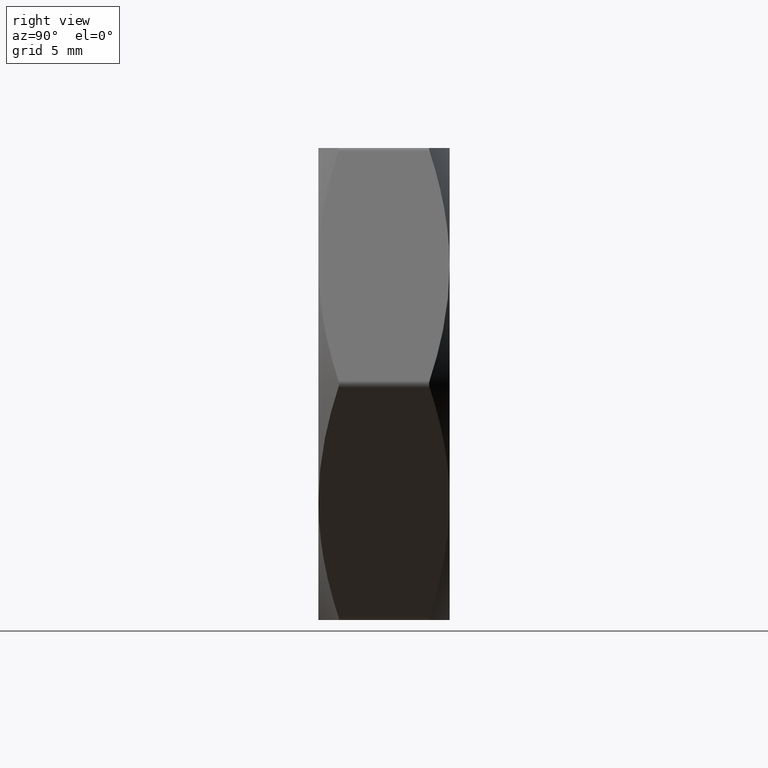
[diagram: clean part render]
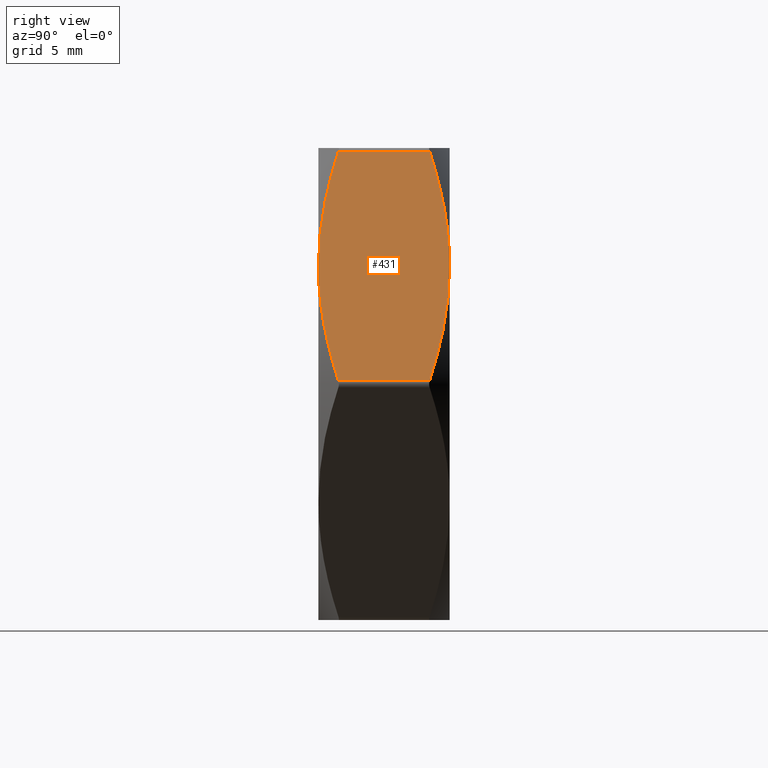
[diagram: same view with one face highlighted and labeled with its STEP entity id]
A machine part, right view. The second image highlights one B-rep face of the part: STEP entity #431.
In plain terms, the highlighted planar face has unit normal (-0.866, 0, -0.5).
Its self-contained STEP definition (entity closure, byte-faithful):
#88 = CARTESIAN_POINT ( 'NONE',  ( 10.53664241271067148, 3.474764084930112240, 17.75000000000000000 ) ) ;
#323 = B_SPLINE_CURVE_WITH_KNOTS ( 'NONE', 3,
 ( #11239, #4997, #6298, #15124, #8787, #3832, #8842, #7619, #1215, #4677 ),
 .UNSPECIFIED., .F., .F.,
 ( 4, 2, 2, 2, 4 ),
 ( 0.01051554819734980099, 0.01178791190731938790, 0.01306027561728897307, 0.01560500303722814341, 0.02069445787710648063 ),
 .UNSPECIFIED. ) ;
#366 = VERTEX_POINT ( 'NONE', #6113 ) ;
#431 = ADVANCED_FACE ( 'NONE', ( #4131 ), #12796, .F. ) ;
#1025 = VERTEX_POINT ( 'NONE', #12449 ) ;
#1047 = B_SPLINE_CURVE_WITH_KNOTS ( 'NONE', 3,
 ( #3057, #11839, #15942, #3290, #9512, #2063 ),
 .UNSPECIFIED., .F., .F.,
 ( 4, 2, 4 ),
 ( 0.0002977047320975979112, 0.005406626464723699940, 0.01051554819734980099 ),
 .UNSPECIFIED. ) ;
#1125 = CARTESIAN_POINT ( 'NONE',  ( 11.36331173878490830, -3.941994751156218779, 16.31816672618069575 ) ) ;
#1215 = CARTESIAN_POINT ( 'NONE',  ( 19.81562494357227777, -3.940851841110031728, 1.678330814003634375 ) ) ;
#1256 = ORIENTED_EDGE ( 'NONE', *, *, #5797, .T. ) ;
#2063 = CARTESIAN_POINT ( 'NONE',  ( 15.58845726811989607, 5.000000000000000000, 8.999999999999996447 ) ) ;
#2405 = CARTESIAN_POINT ( 'NONE',  ( 12.19598677790577845, -4.325605780329639494, 14.87593125222895196 ) ) ;
#3010 = ORIENTED_EDGE ( 'NONE', *, *, #9302, .T. ) ;
#3036 = DIRECTION ( 'NONE',  ( 0.000000000000000000, -1.000000000000000000, 0.000000000000000000 ) ) ;
#3057 = CARTESIAN_POINT ( 'NONE',  ( 20.64027212352926455, 3.474764084930031860, 0.2499999999997483680 ) ) ;
#3290 = CARTESIAN_POINT ( 'NONE',  ( 17.29852708824105179, 4.855426502465717498, 6.038072187059988494 ) ) ;
#3778 = CARTESIAN_POINT ( 'NONE',  ( 10.53664241271067148, 3.474764084930112240, 17.75000000000000000 ) ) ;
#3832 = CARTESIAN_POINT ( 'NONE',  ( 17.29911597758648512, -4.825147480787580712, 6.037052200793660006 ) ) ;
#4131 = FACE_OUTER_BOUND ( 'NONE', #11323, .T. ) ;
#4677 = CARTESIAN_POINT ( 'NONE',  ( 20.64027212352912244, -3.474764084930112240, 0.2499999999999959477 ) ) ;
#4843 = VECTOR ( 'NONE', #7663, 1000.000000000000000 ) ;
#4997 = CARTESIAN_POINT ( 'NONE',  ( 15.80269449085430722, -4.999999999999999112, 8.628930245351545736 ) ) ;
#5313 = CARTESIAN_POINT ( 'NONE',  ( 10.53664241271053115, -3.474764084930032748, 17.75000000000024514 ) ) ;
#5797 = EDGE_CURVE ( 'NONE', #366, #14456, #13872, .T. ) ;
#6113 = CARTESIAN_POINT ( 'NONE',  ( 15.58845726811989607, 5.000000000000000000, 8.999999999999996447 ) ) ;
#6298 = CARTESIAN_POINT ( 'NONE',  ( 16.01798673103119697, -4.991100823725131086, 8.256033146889848240 ) ) ;
#6824 = VECTOR ( 'NONE', #3036, 1000.000000000000000 ) ;
#7448 = AXIS2_PLACEMENT_3D ( 'NONE', #12685, #14130, #10211 ) ;
#7580 = CARTESIAN_POINT ( 'NONE',  ( 15.58845726811989607, 5.000000000000000000, 8.999999999999996447 ) ) ;
#7619 = CARTESIAN_POINT ( 'NONE',  ( 18.98413308608382977, -4.324295589834002307, 3.118516957253463229 ) ) ;
#7644 = CARTESIAN_POINT ( 'NONE',  ( 11.36128959266750726, 3.940851841110029952, 16.32166918599635608 ) ) ;
#7663 = DIRECTION ( 'NONE',  ( -0.000000000000000000, 1.000000000000000000, -0.000000000000000000 ) ) ;
#7685 = CARTESIAN_POINT ( 'NONE',  ( 13.45470436724229479, 4.722150001668018682, 12.69576843511748443 ) ) ;
#7736 = CARTESIAN_POINT ( 'NONE',  ( 15.15892780520859695, 4.991100823725131086, 9.743966853110141102 ) ) ;
#8217 = LINE ( 'NONE', #10790, #6824 ) ;
#8787 = CARTESIAN_POINT ( 'NONE',  ( 16.66031262789973866, -4.929390122363202842, 7.143492058496283548 ) ) ;
#8810 = CARTESIAN_POINT ( 'NONE',  ( 20.64027212352912244, -3.474764084930112240, 0.2499999999999959477 ) ) ;
#8821 = CARTESIAN_POINT ( 'NONE',  ( 14.73022884769072682, 4.955776413173642148, 10.48649522868289807 ) ) ;
#8842 = CARTESIAN_POINT ( 'NONE',  ( 17.72221016899749557, -4.722150001668016905, 5.304231564882509353 ) ) ;
#9246 = ORIENTED_EDGE ( 'NONE', *, *, #14640, .T. ) ;
#9302 = EDGE_CURVE ( 'NONE', #1025, #366, #1047, .T. ) ;
#9436 = EDGE_CURVE ( 'NONE', #16032, #14216, #323, .T. ) ;
#9512 = CARTESIAN_POINT ( 'NONE',  ( 16.44868394276425505, 5.000000000000000000, 7.510043693489947714 ) ) ;
#9566 = VERTEX_POINT ( 'NONE', #5313 ) ;
#10020 = CARTESIAN_POINT ( 'NONE',  ( 13.87779855865330880, 4.825147480787581600, 11.96294779920633289 ) ) ;
#10115 = CARTESIAN_POINT ( 'NONE',  ( 14.51660190834004993, 4.929390122363200177, 10.85650794150370757 ) ) ;
#10211 = DIRECTION ( 'NONE',  ( -0.4999999999999998890, 0.000000000000000000, 0.8660254037844387076 ) ) ;
#10790 = CARTESIAN_POINT ( 'NONE',  ( 10.53664241271067148, 5.000000000000000000, 17.75000000000000000 ) ) ;
#10926 = CARTESIAN_POINT ( 'NONE',  ( 15.58845726811989607, -5.000000000000000000, 8.999999999999996447 ) ) ;
#11086 = EDGE_CURVE ( 'NONE', #14456, #9566, #8217, .T. ) ;
#11196 = CARTESIAN_POINT ( 'NONE',  ( 13.87838744799874569, -4.855426502465718386, 11.96192781293999907 ) ) ;
#11239 = CARTESIAN_POINT ( 'NONE',  ( 15.58845726811989607, -5.000000000000000000, 8.999999999999996447 ) ) ;
#11323 = EDGE_LOOP ( 'NONE', ( #14845, #9246, #3010, #1256, #13265, #13229 ) ) ;
#11440 = CARTESIAN_POINT ( 'NONE',  ( 20.64027212352912244, 5.000000000000000000, 0.2499999999999932832 ) ) ;
#11641 = EDGE_CURVE ( 'NONE', #9566, #16032, #14380, .T. ) ;
#11839 = CARTESIAN_POINT ( 'NONE',  ( 19.81360279745488739, 3.941994751156219667, 1.681833273819293817 ) ) ;
#12449 = CARTESIAN_POINT ( 'NONE',  ( 20.64027212352926455, 3.474764084930031860, 0.2499999999997483680 ) ) ;
#12571 = CARTESIAN_POINT ( 'NONE',  ( 15.58845726811989607, -5.000000000000000000, 8.999999999999996447 ) ) ;
#12685 = CARTESIAN_POINT ( 'NONE',  ( 10.39230484541326582, 5.000000000000000000, 18.00000000000000000 ) ) ;
#12796 = PLANE ( 'NONE',  #7448 ) ;
#13229 = ORIENTED_EDGE ( 'NONE', *, *, #11641, .T. ) ;
#13265 = ORIENTED_EDGE ( 'NONE', *, *, #11086, .T. ) ;
#13290 = LINE ( 'NONE', #11440, #4843 ) ;
#13872 = B_SPLINE_CURVE_WITH_KNOTS ( 'NONE', 3,
 ( #7580, #15093, #7736, #8821, #10115, #10020, #7685, #13971, #7644, #88 ),
 .UNSPECIFIED., .F., .F.,
 ( 4, 2, 2, 2, 4 ),
 ( 0.01051554819734980099, 0.01178791190731938616, 0.01306027561728897134, 0.01560500303722813994, 0.02069445787710648757 ),
 .UNSPECIFIED. ) ;
#13971 = CARTESIAN_POINT ( 'NONE',  ( 12.19278145015596593, 4.324295589834002307, 14.88148304274653100 ) ) ;
#14130 = DIRECTION ( 'NONE',  ( -0.8660254037844387076, 0.000000000000000000, -0.4999999999999998890 ) ) ;
#14216 = VERTEX_POINT ( 'NONE', #8810 ) ;
#14380 = B_SPLINE_CURVE_WITH_KNOTS ( 'NONE', 3,
 ( #14976, #1125, #2405, #11196, #15022, #12571 ),
 .UNSPECIFIED., .F., .F.,
 ( 4, 2, 4 ),
 ( 0.0002977047320976005133, 0.005406626464723700808, 0.01051554819734980099 ),
 .UNSPECIFIED. ) ;
#14456 = VERTEX_POINT ( 'NONE', #3778 ) ;
#14640 = EDGE_CURVE ( 'NONE', #14216, #1025, #13290, .T. ) ;
#14845 = ORIENTED_EDGE ( 'NONE', *, *, #9436, .T. ) ;
#14976 = CARTESIAN_POINT ( 'NONE',  ( 10.53664241271053115, -3.474764084930032748, 17.75000000000024514 ) ) ;
#15022 = CARTESIAN_POINT ( 'NONE',  ( 14.72823059347554242, -4.999999999999999112, 10.48995630651004518 ) ) ;
#15093 = CARTESIAN_POINT ( 'NONE',  ( 15.37422004538548492, 5.000000000000000000, 9.371069754648447159 ) ) ;
#15124 = CARTESIAN_POINT ( 'NONE',  ( 16.44668568854906354, -4.955776413173640371, 7.513504771317089492 ) ) ;
#15942 = CARTESIAN_POINT ( 'NONE',  ( 18.98092775833401902, 4.325605780329639494, 3.124068747771038712 ) ) ;
#16032 = VERTEX_POINT ( 'NONE', #10926 ) ;